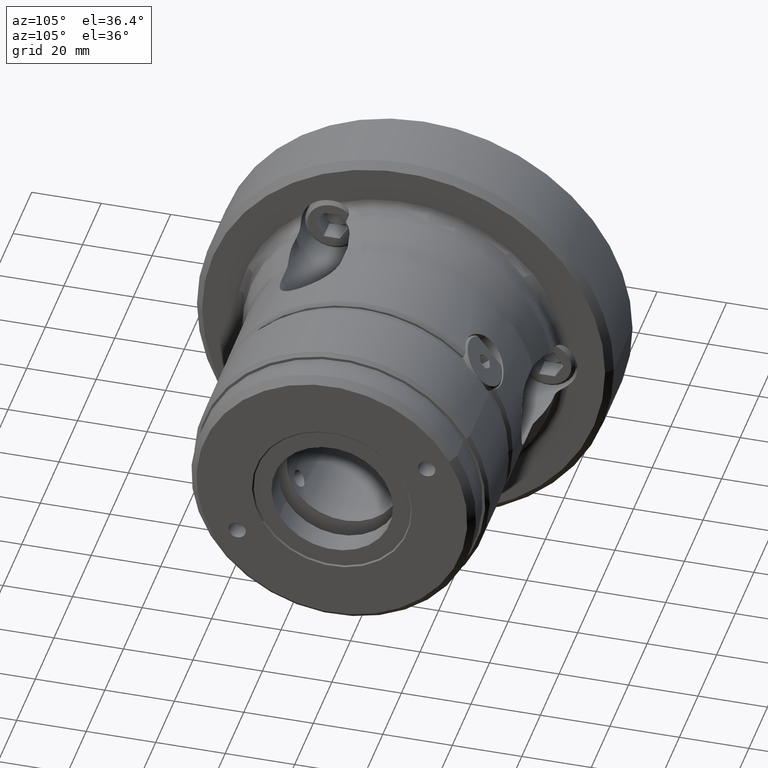
[diagram: clean part render]
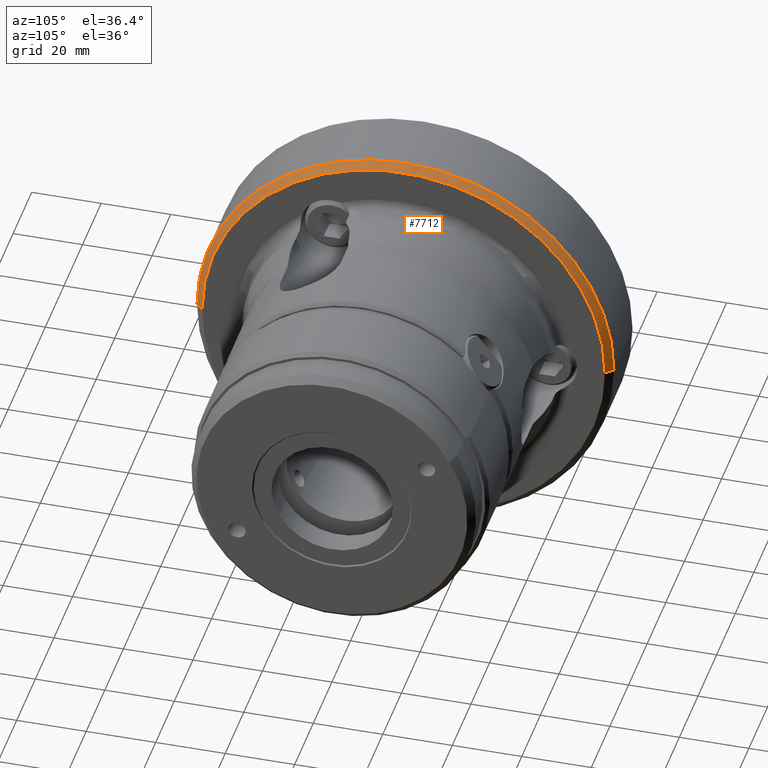
[diagram: same view with one face highlighted and labeled with its STEP entity id]
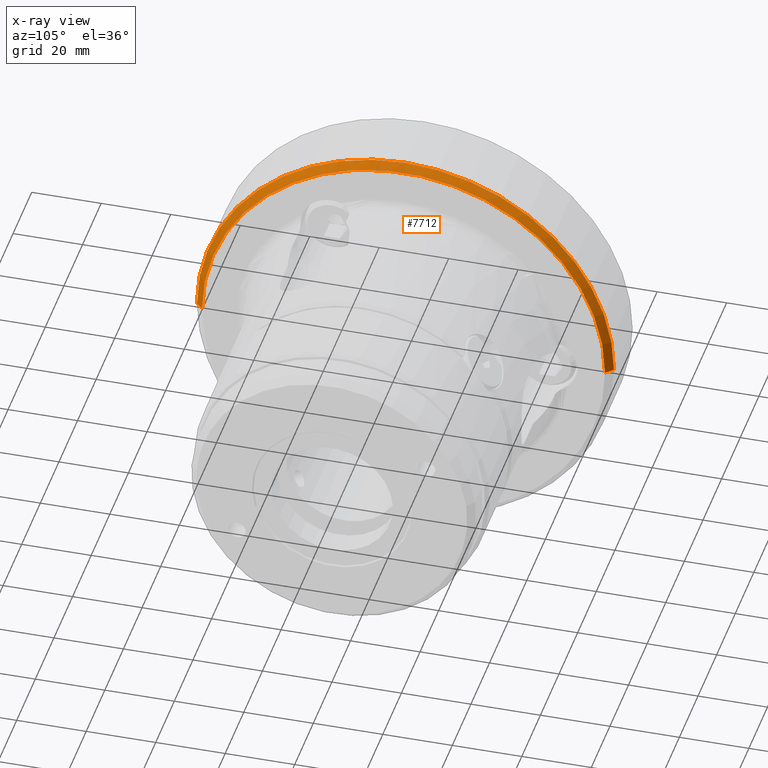
[diagram: x-ray of the same camera — body ghosted, the highlighted face saturated]
A machine part, auxiliary view. The second image highlights one B-rep face of the part: STEP entity #7712.
The next image is the same camera in x-ray: the body ghosted, the highlighted face saturated — about 0% of this face is hidden behind the body in this view.
In plain terms, the highlighted conical surface has half-angle 45 deg.
Its self-contained STEP definition (entity closure, byte-faithful):
#222 = DIRECTION ( 'NONE',  ( 0.0000000000000000000, -1.000000000000000000, 0.0000000000000000000 ) ) ;
#366 = EDGE_CURVE ( 'NONE', #4873, #4857, #4632, .T. ) ;
#504 = DIRECTION ( 'NONE',  ( -1.000000000000000000, 8.386477729145246300E-033, -0.0000000000000000000 ) ) ;
#717 = VERTEX_POINT ( 'NONE', #2880 ) ;
#816 = CARTESIAN_POINT ( 'NONE',  ( 21.00000000000001800, -60.00000000000000000, 0.0000000000000000000 ) ) ;
#931 = VERTEX_POINT ( 'NONE', #816 ) ;
#1075 = CARTESIAN_POINT ( 'NONE',  ( 21.00000000000001800, -60.00000000000000000, 0.0000000000000000000 ) ) ;
#1250 = CARTESIAN_POINT ( 'NONE',  ( 23.00000000000000000, 58.00000000000001400, 7.225416114969384800E-015 ) ) ;
#1285 = ORIENTED_EDGE ( 'NONE', *, *, #1484, .F. ) ;
#1484 = EDGE_CURVE ( 'NONE', #4873, #717, #1697, .T. ) ;
#1673 = CIRCLE ( 'NONE', #5376, 60.00000000000000000 ) ;
#1697 = CIRCLE ( 'NONE', #9062, 58.00000000000001400 ) ;
#2253 = DIRECTION ( 'NONE',  ( -0.7071067811865474600, 0.7071067811865474600, 8.659560562354932900E-017 ) ) ;
#2880 = CARTESIAN_POINT ( 'NONE',  ( 23.00000000000000000, -58.00000000000001400, 0.0000000000000000000 ) ) ;
#3228 = DIRECTION ( 'NONE',  ( 1.000000000000000000, -8.386477729145238100E-033, 0.0000000000000000000 ) ) ;
#3539 = ORIENTED_EDGE ( 'NONE', *, *, #4502, .F. ) ;
#3633 = LINE ( 'NONE', #1075, #8875 ) ;
#4502 = EDGE_CURVE ( 'NONE', #931, #4857, #1673, .T. ) ;
#4504 = CARTESIAN_POINT ( 'NONE',  ( 21.00000000000001800, -1.761160323120501400E-031, 0.0000000000000000000 ) ) ;
#4609 = ORIENTED_EDGE ( 'NONE', *, *, #8627, .F. ) ;
#4632 = LINE ( 'NONE', #6545, #4726 ) ;
#4726 = VECTOR ( 'NONE', #2253, 1000.000000000000100 ) ;
#4777 = CARTESIAN_POINT ( 'NONE',  ( 21.00000000000001800, -1.761160323120501400E-031, 0.0000000000000000000 ) ) ;
#4857 = VERTEX_POINT ( 'NONE', #5470 ) ;
#4873 = VERTEX_POINT ( 'NONE', #1250 ) ;
#5376 = AXIS2_PLACEMENT_3D ( 'NONE', #4777, #504, #5501 ) ;
#5437 = FACE_OUTER_BOUND ( 'NONE', #7204, .T. ) ;
#5470 = CARTESIAN_POINT ( 'NONE',  ( 21.00000000000001800, 60.00000000000000000, 7.347880794884118400E-015 ) ) ;
#5501 = DIRECTION ( 'NONE',  ( 0.0000000000000000000, -1.000000000000000000, 0.0000000000000000000 ) ) ;
#6197 = ORIENTED_EDGE ( 'NONE', *, *, #366, .T. ) ;
#6545 = CARTESIAN_POINT ( 'NONE',  ( 21.00000000000001800, 60.00000000000000000, 7.347880794884118400E-015 ) ) ;
#7204 = EDGE_LOOP ( 'NONE', ( #1285, #6197, #3539, #4609 ) ) ;
#7498 = CARTESIAN_POINT ( 'NONE',  ( 23.00000000000000000, -1.928889877703404800E-031, 0.0000000000000000000 ) ) ;
#7712 = ADVANCED_FACE ( 'NONE', ( #5437 ), #8783, .T. ) ;
#8066 = DIRECTION ( 'NONE',  ( -1.000000000000000000, 8.386477729145246300E-033, -0.0000000000000000000 ) ) ;
#8185 = DIRECTION ( 'NONE',  ( -0.7071067811865474600, -0.7071067811865474600, 0.0000000000000000000 ) ) ;
#8233 = DIRECTION ( 'NONE',  ( 0.0000000000000000000, -1.000000000000000000, 0.0000000000000000000 ) ) ;
#8627 = EDGE_CURVE ( 'NONE', #717, #931, #3633, .T. ) ;
#8783 = CONICAL_SURFACE ( 'NONE', #8960, 60.00000000000000000, 0.7853981633974482800 ) ;
#8875 = VECTOR ( 'NONE', #8185, 1000.000000000000100 ) ;
#8960 = AXIS2_PLACEMENT_3D ( 'NONE', #4504, #8066, #222 ) ;
#9062 = AXIS2_PLACEMENT_3D ( 'NONE', #7498, #3228, #8233 ) ;